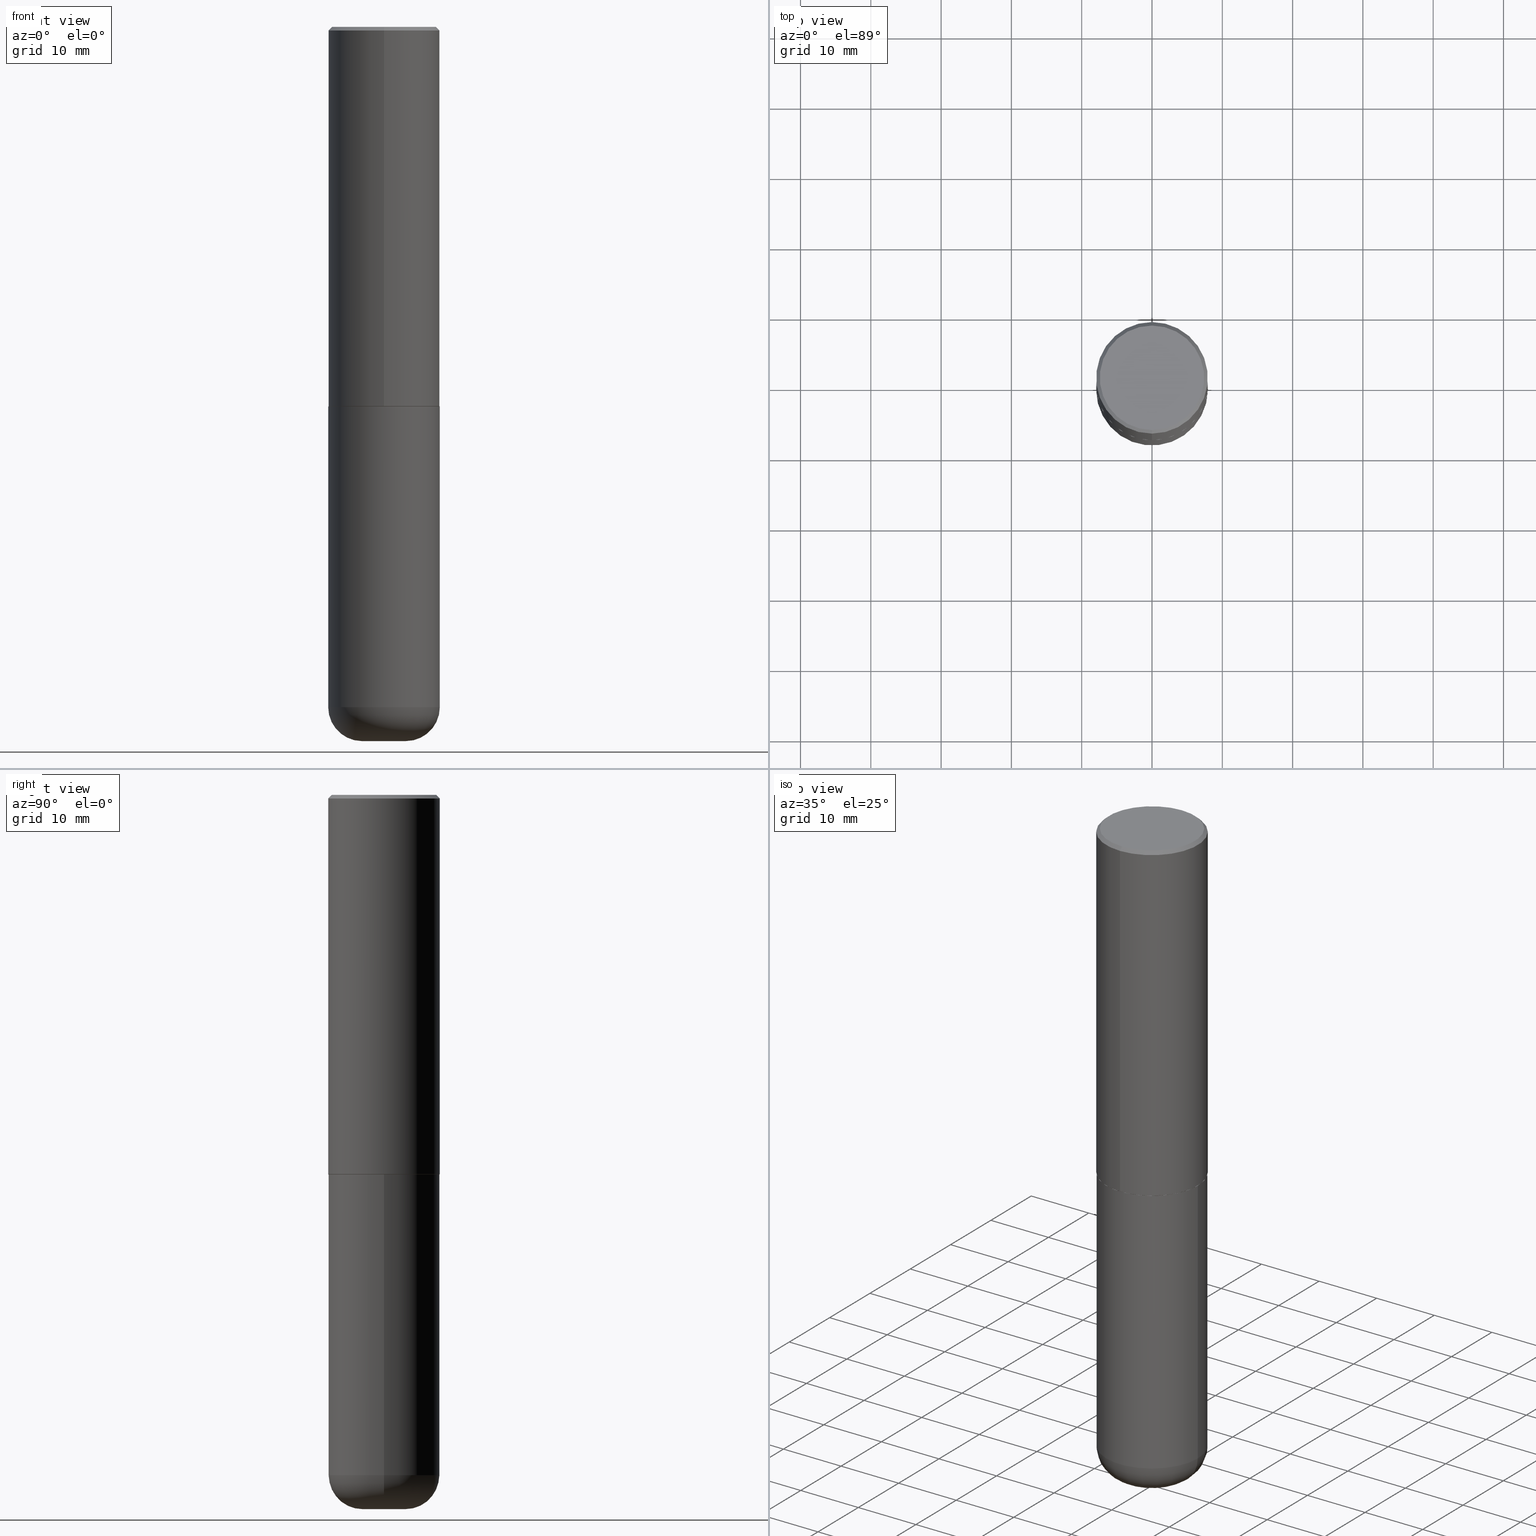
[diagram: canonical four-view strip — front | top / right | iso, engineering-drawing reading convention]
A machine part, canonical four-view strip (front | top / right | iso — engineering-drawing reading convention). The complete STEP part file that produces these views, byte-faithful:
ISO-10303-21;
HEADER;
FILE_DESCRIPTION (( 'STEP AP203' ),
    '1' );
FILE_NAME ('37620.STEP',
    '2024-03-02T06:11:22',
    ( '' ),
    ( '' ),
    'SwSTEP 2.0',
    'SolidWorks 2023',
    '' );
FILE_SCHEMA (( 'CONFIG_CONTROL_DESIGN' ));
ENDSEC;

DATA;
#1 = CALENDAR_DATE ( 2024, 2, 3 ) ;
#2 = EDGE_LOOP ( 'NONE', ( #322, #139, #11, #153 ) ) ;
#3 = VECTOR ( 'NONE', #203, 39.37007874015748143 ) ;
#4 = CC_DESIGN_APPROVAL ( #191, ( #326 ) ) ;
#5 = CARTESIAN_POINT ( 'NONE',  ( -2.075300644325887493E-15, -0.2924999999999999822, 1.030311686326234990E-15 ) ) ;
#6 = ORIENTED_EDGE ( 'NONE', *, *, #176, .T. ) ;
#7 = EDGE_CURVE ( 'NONE', #67, #396, #145, .T. ) ;
#8 = APPROVAL_DATE_TIME ( #204, #191 ) ;
#9 = CARTESIAN_POINT ( 'NONE',  ( 2.182175836776958741E-15, 0.3124999999999999445, -0.02000000000000116268 ) ) ;
#10 = ORIENTED_EDGE ( 'NONE', *, *, #369, .T. ) ;
#11 = ORIENTED_EDGE ( 'NONE', *, *, #13, .F. ) ;
#12 = DIRECTION ( 'NONE',  ( -2.445468806185136597E-29, 3.491481338843145583E-15, 1.000000000000000000 ) ) ;
#13 = EDGE_CURVE ( 'NONE', #172, #244, #52, .T. ) ;
#14 = APPROVAL_ROLE ( '' ) ;
#15 = AXIS2_PLACEMENT_3D ( 'NONE', #187, #86, #25 ) ;
#16 = CIRCLE ( 'NONE', #81, 0.3125000000000000000 ) ;
#17 = EDGE_CURVE ( 'NONE', #244, #172, #315, .T. ) ;
#18 = DIRECTION ( 'NONE',  ( -2.444852431726452894E-29, 3.492364022149836358E-15, 1.000000000000000000 ) ) ;
#19 = EDGE_LOOP ( 'NONE', ( #353, #361, #271, #170 ) ) ;
#20 = DIRECTION ( 'NONE',  ( -2.444852431726452894E-29, 3.492364022149836358E-15, 1.000000000000000000 ) ) ;
#21 = CARTESIAN_POINT ( 'NONE',  ( -0.1225000000000000255, -1.243212904968626105E-14, -3.810000000000000053 ) ) ;
#22 = CARTESIAN_POINT ( 'NONE',  ( 0.1225000000000000394, -1.482133828338914748E-14, -3.999999999999999556 ) ) ;
#23 = CLOSED_SHELL ( 'NONE', ( #298, #161, #210, #283, #354, #209 ) ) ;
#24 = FACE_OUTER_BOUND ( 'NONE', #111, .T. ) ;
#25 = DIRECTION ( 'NONE',  ( 1.000000000000000000, -6.982962677686266711E-15, 4.876176775795936353E-29 ) ) ;
#26 = DIRECTION ( 'NONE',  ( 1.000000000000000000, -6.982962677686263555E-15, 0.000000000000000000 ) ) ;
#27 = CARTESIAN_POINT ( 'NONE',  ( -0.3125000000000000000, 2.220446049250313081E-15, -1.537167215704658232E-29 ) ) ;
#28 = EDGE_CURVE ( 'NONE', #67, #302, #288, .T. ) ;
#29 = VECTOR ( 'NONE', #173, 39.37007874015748143 ) ;
#30 = MANIFOLD_SOLID_BREP ( 'Body-Move/Copy2[1]', #23 ) ;
#31 = PRODUCT_DEFINITION_SHAPE ( 'NONE', 'NONE',  #370 ) ;
#32 = ORIENTED_EDGE ( 'NONE', *, *, #189, .T. ) ;
#33 = PERSON_AND_ORGANIZATION ( #133, #255 ) ;
#34 = PERSON_AND_ORGANIZATION ( #133, #255 ) ;
#35 =( LENGTH_UNIT ( ) NAMED_UNIT ( * ) SI_UNIT ( $, .METRE. ) );
#36 = ORIENTED_EDGE ( 'NONE', *, *, #65, .F. ) ;
#37 = CC_DESIGN_DATE_AND_TIME_ASSIGNMENT ( #389, #359, ( #326 ) ) ;
#38 = ADVANCED_FACE ( 'NONE', ( #336 ), #45, .T. ) ;
#39 = MANIFOLD_SOLID_BREP ( 'Body-Move/Copy2[2]', #68 ) ;
#40 = CARTESIAN_POINT ( 'NONE',  ( 0.3125000000000000000, -9.601573681818640393E-15, -2.124999999999999556 ) ) ;
#41 = CARTESIAN_POINT ( 'NONE',  ( 5.192866564986985411E-29, -7.417781183046251262E-15, -2.123999999999999666 ) ) ;
#42 = CARTESIAN_POINT ( 'NONE',  ( -0.1225000000000000394, -1.208880417790426594E-14, -3.999999999999999556 ) ) ;
#43 = VERTEX_POINT ( 'NONE', #110 ) ;
#44 = PLANE ( 'NONE',  #113 ) ;
#45 = CYLINDRICAL_SURFACE ( 'NONE', #214, 0.3125000000000001665 ) ;
#46 = DIRECTION ( 'NONE',  ( -2.444852431726452894E-29, 3.492364022149836358E-15, 1.000000000000000000 ) ) ;
#47 = DIRECTION ( 'NONE',  ( 1.000000000000000000, -6.982962677686265133E-15, 0.000000000000000000 ) ) ;
#48 = ORIENTED_EDGE ( 'NONE', *, *, #356, .F. ) ;
#49 = DIRECTION ( 'NONE',  ( 2.444852431726452333E-29, -3.492364022149836358E-15, -1.000000000000000000 ) ) ;
#50 = DIRECTION ( 'NONE',  ( -2.444852431726452894E-29, 3.492364022149836358E-15, 1.000000000000000000 ) ) ;
#51 = EDGE_CURVE ( 'NONE', #74, #396, #231, .T. ) ;
#52 = CIRCLE ( 'NONE', #78, 0.3125000000000000000 ) ;
#53 = DIRECTION ( 'NONE',  ( -6.982962677686265922E-15, -1.000000000000000000, 3.507991003100177457E-15 ) ) ;
#54 = DIRECTION ( 'NONE',  ( 1.000000000000000000, -6.982962677686263555E-15, 0.000000000000000000 ) ) ;
#55 = CC_DESIGN_PERSON_AND_ORGANIZATION_ASSIGNMENT ( #57, #351, ( #370 ) ) ;
#56 = LINE ( 'NONE', #378, #415 ) ;
#57 = PERSON_AND_ORGANIZATION ( #133, #255 ) ;
#58 =( NAMED_UNIT ( * ) PLANE_ANGLE_UNIT ( ) SI_UNIT ( $, .RADIAN. ) );
#59 = EDGE_LOOP ( 'NONE', ( #309, #342 ) ) ;
#60 = CALENDAR_DATE ( 2024, 2, 3 ) ;
#61 = PERSON_AND_ORGANIZATION_ROLE ( 'design_owner' ) ;
#62 = AXIS2_PLACEMENT_3D ( 'NONE', #109, #76, #270 ) ;
#63 = SECURITY_CLASSIFICATION_LEVEL ( 'unclassified' ) ;
#64 = EDGE_CURVE ( 'NONE', #192, #304, #165, .T. ) ;
#65 = EDGE_CURVE ( 'NONE', #124, #396, #237, .T. ) ;
#66 = CARTESIAN_POINT ( 'NONE',  ( 5.195311417418712329E-29, -7.421273547068401324E-15, -2.124999999999999556 ) ) ;
#67 = VERTEX_POINT ( 'NONE', #332 ) ;
#68 = CLOSED_SHELL ( 'NONE', ( #125, #38, #299, #398, #234, #223, #313, #89 ) ) ;
#69 = LOCAL_TIME ( 1, 11, 22.00000000000000000, #123 ) ;
#70 = APPROVAL_STATUS ( 'not_yet_approved' ) ;
#71 = CARTESIAN_POINT ( 'NONE',  ( 9.317236151565370389E-29, -1.330254390099238573E-14, -3.810000000000000053 ) ) ;
#72 = PLANE ( 'NONE',  #202 ) ;
#73 = ADVANCED_BREP_SHAPE_REPRESENTATION ( '37620', ( #30, #39, #183 ), #358 ) ;
#74 = VERTEX_POINT ( 'NONE', #9 ) ;
#75 = ORIENTED_EDGE ( 'NONE', *, *, #64, .F. ) ;
#76 = DIRECTION ( 'NONE',  ( -2.445468806185136597E-29, 3.491481338843145583E-15, 1.000000000000000000 ) ) ;
#77 = ORIENTED_EDGE ( 'NONE', *, *, #352, .F. ) ;
#78 = AXIS2_PLACEMENT_3D ( 'NONE', #150, #12, #333 ) ;
#79 = ORIENTED_EDGE ( 'NONE', *, *, #51, .F. ) ;
#80 = AXIS2_PLACEMENT_3D ( 'NONE', #217, #417, #329 ) ;
#81 = AXIS2_PLACEMENT_3D ( 'NONE', #404, #311, #157 ) ;
#82 = DIRECTION ( 'NONE',  ( -1.000000000000000000, 6.982962677686265922E-15, -4.876176775795935793E-29 ) ) ;
#83 = DIRECTION ( 'NONE',  ( 6.982962677686265133E-15, 1.000000000000000000, -3.496765431890256920E-15 ) ) ;
#84 = DIRECTION ( 'NONE',  ( 4.937700262164541731E-15, 0.7071067811865442421, -0.7071067811865507924 ) ) ;
#85 = AXIS2_PLACEMENT_3D ( 'NONE', #140, #49, #337 ) ;
#86 = DIRECTION ( 'NONE',  ( -2.445468806185136597E-29, 3.491481338843145583E-15, 1.000000000000000000 ) ) ;
#87 = PRODUCT_DEFINITION_FORMATION_WITH_SPECIFIED_SOURCE ( 'ANY', '', #101, .NOT_KNOWN. ) ;
#88 = EDGE_CURVE ( 'NONE', #43, #304, #294, .T. ) ;
#89 = ADVANCED_FACE ( 'NONE', ( #301 ), #212, .F. ) ;
#90 = DIRECTION ( 'NONE',  ( -6.982962677686265922E-15, -1.000000000000000000, 3.507991003100177457E-15 ) ) ;
#91 = DIRECTION ( 'NONE',  ( 1.000000000000000000, -6.982962677686269077E-15, 4.883557194083113462E-29 ) ) ;
#92 = PERSON_AND_ORGANIZATION_ROLE ( 'classification_officer' ) ;
#93 = AXIS2_PLACEMENT_3D ( 'NONE', #71, #334, #310 ) ;
#94 = ORIENTED_EDGE ( 'NONE', *, *, #328, .F. ) ;
#95 = DIRECTION ( 'NONE',  ( 1.000000000000000000, 0.000000000000000000, 0.000000000000000000 ) ) ;
#96 = APPROVAL_DATE_TIME ( #418, #224 ) ;
#97 = CC_DESIGN_PERSON_AND_ORGANIZATION_ASSIGNMENT ( #33, #92, ( #326 ) ) ;
#98 = EDGE_CURVE ( 'NONE', #124, #130, #402, .T. ) ;
#99 = ORIENTED_EDGE ( 'NONE', *, *, #51, .T. ) ;
#100 = CARTESIAN_POINT ( 'NONE',  ( 5.192866564986985411E-29, -7.417781183046251262E-15, -2.123999999999999666 ) ) ;
#101 = PRODUCT ( '37620', '37620', '', ( #193 ) ) ;
#102 = VERTEX_POINT ( 'NONE', #136 ) ;
#103 = LINE ( 'NONE', #373, #219 ) ;
#104 = AXIS2_PLACEMENT_3D ( 'NONE', #66, #46, #107 ) ;
#105 = AXIS2_PLACEMENT_3D ( 'NONE', #287, #256, #83 ) ;
#106 = ORIENTED_EDGE ( 'NONE', *, *, #339, .F. ) ;
#107 = DIRECTION ( 'NONE',  ( -6.982962677686265922E-15, -1.000000000000000000, 3.507991003100177457E-15 ) ) ;
#108 = ORIENTED_EDGE ( 'NONE', *, *, #412, .F. ) ;
#109 = CARTESIAN_POINT ( 'NONE',  ( 9.317236151565370389E-29, -1.330254390099238573E-14, -3.810000000000000053 ) ) ;
#110 = CARTESIAN_POINT ( 'NONE',  ( 0.3124999999999998890, -1.548471973776934408E-14, -3.810000000000000053 ) ) ;
#111 = EDGE_LOOP ( 'NONE', ( #213, #365, #248, #79 ) ) ;
#112 = EDGE_CURVE ( 'NONE', #302, #67, #307, .T. ) ;
#113 = AXIS2_PLACEMENT_3D ( 'NONE', #174, #277, #306 ) ;
#114 = EDGE_LOOP ( 'NONE', ( #36, #138, #377, #99 ) ) ;
#115 = CARTESIAN_POINT ( 'NONE',  ( -2.143905624303602824E-15, -0.3125000000000000555, -0.01999999999999897693 ) ) ;
#116 = FACE_OUTER_BOUND ( 'NONE', #241, .T. ) ;
#117 = EDGE_LOOP ( 'NONE', ( #276, #416, #284, #77 ) ) ;
#118 = DIRECTION ( 'NONE',  ( 6.982962677686265133E-15, 1.000000000000000000, -3.496765431890256920E-15 ) ) ;
#119 = AXIS2_PLACEMENT_3D ( 'NONE', #221, #122, #118 ) ;
#120 = CYLINDRICAL_SURFACE ( 'NONE', #350, 0.3125000000000000000 ) ;
#121 = DIRECTION ( 'NONE',  ( -2.444852431726452894E-29, 3.492364022149836358E-15, 1.000000000000000000 ) ) ;
#122 = DIRECTION ( 'NONE',  ( 2.444852431726452894E-29, -3.492364022149836358E-15, -1.000000000000000000 ) ) ;
#123 = COORDINATED_UNIVERSAL_TIME_OFFSET ( 5, 0, .BEHIND. ) ;
#124 = VERTEX_POINT ( 'NONE', #5 ) ;
#125 = ADVANCED_FACE ( 'NONE', ( #236 ), #282, .T. ) ;
#126 = AXIS2_PLACEMENT_3D ( 'NONE', #100, #171, #341 ) ;
#127 = AXIS2_PLACEMENT_3D ( 'NONE', #403, #376, #344 ) ;
#128 = ORIENTED_EDGE ( 'NONE', *, *, #64, .T. ) ;
#129 =( NAMED_UNIT ( * ) SI_UNIT ( $, .STERADIAN. ) SOLID_ANGLE_UNIT ( ) );
#130 = VERTEX_POINT ( 'NONE', #178 ) ;
#131 = PERSON_AND_ORGANIZATION ( #133, #255 ) ;
#132 = EDGE_CURVE ( 'NONE', #102, #169, #409, .T. ) ;
#133 = PERSON ( 'UNSPECIFIED', 'UNSPECIFIED', 'UNSPECIFIED', ('UNSPECIFIED'), ('UNSPECIFIED'), ('UNSPECIFIED') ) ;
#134 = AXIS2_PLACEMENT_3D ( 'NONE', #141, #137, #47 ) ;
#135 = CC_DESIGN_APPROVAL ( #148, ( #370 ) ) ;
#136 = CARTESIAN_POINT ( 'NONE',  ( 2.216893335571564642E-15, 0.3114999999999925606, -2.125000000000000888 ) ) ;
#137 = DIRECTION ( 'NONE',  ( -2.445468806185136597E-29, 3.491481338843145583E-15, 1.000000000000000000 ) ) ;
#138 = ORIENTED_EDGE ( 'NONE', *, *, #189, .F. ) ;
#139 = ORIENTED_EDGE ( 'NONE', *, *, #339, .T. ) ;
#140 = CARTESIAN_POINT ( 'NONE',  ( 2.042516583223232540E-15, 0.2924999999999999822, -1.017118871555123169E-15 ) ) ;
#141 = CARTESIAN_POINT ( 'NONE',  ( 5.196621213143414147E-29, -7.419397845041682046E-15, -2.124999999999999556 ) ) ;
#142 = AXIS2_PLACEMENT_3D ( 'NONE', #208, #364, #238 ) ;
#143 = CC_DESIGN_SECURITY_CLASSIFICATION ( #326, ( #87 ) ) ;
#144 = ORIENTED_EDGE ( 'NONE', *, *, #17, .F. ) ;
#145 = LINE ( 'NONE', #338, #3 ) ;
#146 = COORDINATED_UNIVERSAL_TIME_OFFSET ( 5, 0, .BEHIND. ) ;
#147 = CARTESIAN_POINT ( 'NONE',  ( -2.150299018297948745E-46, 3.071607443834507134E-32, 8.795209847407834549E-18 ) ) ;
#148 = APPROVAL ( #233, 'UNSPECIFIED' ) ;
#149 = CC_DESIGN_PERSON_AND_ORGANIZATION_ASSIGNMENT ( #131, #230, ( #87 ) ) ;
#150 = CARTESIAN_POINT ( 'NONE',  ( 5.196621213143414147E-29, -7.419397845041682046E-15, -2.124999999999999556 ) ) ;
#151 = LINE ( 'NONE', #218, #308 ) ;
#152 = AXIS2_PLACEMENT_3D ( 'NONE', #147, #279, #393 ) ;
#153 = ORIENTED_EDGE ( 'NONE', *, *, #177, .F. ) ;
#154 = VECTOR ( 'NONE', #408, 39.37007874015748143 ) ;
#155 = FACE_OUTER_BOUND ( 'NONE', #179, .T. ) ;
#156 = CARTESIAN_POINT ( 'NONE',  ( 5.195311417418712329E-29, -7.421273547068401324E-15, -2.124999999999999556 ) ) ;
#157 = DIRECTION ( 'NONE',  ( -6.982962677686265133E-15, -1.000000000000000000, 3.496765431890256920E-15 ) ) ;
#158 = DIRECTION ( 'NONE',  ( -2.445468806185136597E-29, 3.491481338843145583E-15, 1.000000000000000000 ) ) ;
#159 = CIRCLE ( 'NONE', #127, 0.1899999999999997247 ) ;
#160 = APPROVAL_ROLE ( '' ) ;
#161 = ADVANCED_FACE ( 'NONE', ( #200 ), #372, .T. ) ;
#162 = PERSON_AND_ORGANIZATION_ROLE ( 'design_supplier' ) ;
#163 = DATE_TIME_ROLE ( 'creation_date' ) ;
#164 = CONICAL_SURFACE ( 'NONE', #188, 0.3114999999999999991, 0.7853981633975507526 ) ;
#165 = CIRCLE ( 'NONE', #247, 0.1899999999999997247 ) ;
#166 = LOCAL_TIME ( 1, 11, 22.00000000000000000, #263 ) ;
#167 = ORIENTED_EDGE ( 'NONE', *, *, #112, .F. ) ;
#168 = LINE ( 'NONE', #394, #345 ) ;
#169 = VERTEX_POINT ( 'NONE', #246 ) ;
#170 = ORIENTED_EDGE ( 'NONE', *, *, #369, .F. ) ;
#171 = DIRECTION ( 'NONE',  ( -2.444852431726452894E-29, 3.492364022149836358E-15, 1.000000000000000000 ) ) ;
#172 = VERTEX_POINT ( 'NONE', #40 ) ;
#173 = DIRECTION ( 'NONE',  ( -4.851104656540957964E-15, -0.7071067811865491270, -0.7071067811865459074 ) ) ;
#174 = CARTESIAN_POINT ( 'NONE',  ( 5.196621213143414147E-29, -7.419397845041682046E-15, -2.124999999999999556 ) ) ;
#175 = CARTESIAN_POINT ( 'NONE',  ( 0.000000000000000000, 0.000000000000000000, 0.000000000000000000 ) ) ;
#176 = EDGE_CURVE ( 'NONE', #302, #74, #168, .T. ) ;
#177 = EDGE_CURVE ( 'NONE', #43, #172, #103, .T. ) ;
#178 = CARTESIAN_POINT ( 'NONE',  ( 2.112346210000095838E-15, 0.2924999999999999822, -1.012721266631419361E-15 ) ) ;
#179 = EDGE_LOOP ( 'NONE', ( #75, #324, #206, #108 ) ) ;
#180 = CARTESIAN_POINT ( 'NONE',  ( 5.195311417418712329E-29, -7.421273547068401324E-15, -2.124999999999999556 ) ) ;
#181 = ORIENTED_EDGE ( 'NONE', *, *, #412, .T. ) ;
#182 = AXIS2_PLACEMENT_3D ( 'NONE', #406, #289, #314 ) ;
#183 = AXIS2_PLACEMENT_3D ( 'NONE', #320, #261, #95 ) ;
#184 = CARTESIAN_POINT ( 'NONE',  ( -0.3125000000000000000, -8.140524823766720019E-15, -2.124999999999999556 ) ) ;
#185 = DIRECTION ( 'NONE',  ( -2.445468806185136597E-29, 3.491481338843145583E-15, 1.000000000000000000 ) ) ;
#186 = APPLICATION_CONTEXT ( 'configuration controlled 3d designs of mechanical parts and assemblies' ) ;
#187 = CARTESIAN_POINT ( 'NONE',  ( 0.000000000000000000, 0.000000000000000000, 0.000000000000000000 ) ) ;
#188 = AXIS2_PLACEMENT_3D ( 'NONE', #243, #20, #53 ) ;
#189 = EDGE_CURVE ( 'NONE', #130, #124, #267, .T. ) ;
#190 = CIRCLE ( 'NONE', #331, 0.3114999999999999991 ) ;
#191 = APPROVAL ( #70, 'UNSPECIFIED' ) ;
#192 = VERTEX_POINT ( 'NONE', #42 ) ;
#193 = MECHANICAL_CONTEXT ( 'NONE', #405, 'mechanical' ) ;
#194 = ORIENTED_EDGE ( 'NONE', *, *, #383, .F. ) ;
#195 = APPROVAL_ROLE ( '' ) ;
#196 = CIRCLE ( 'NONE', #357, 0.1225000000000000394 ) ;
#197 = CIRCLE ( 'NONE', #80, 0.3125000000000000000 ) ;
#198 = EDGE_LOOP ( 'NONE', ( #32, #216 ) ) ;
#199 = PERSON_AND_ORGANIZATION ( #133, #255 ) ;
#200 = FACE_OUTER_BOUND ( 'NONE', #388, .T. ) ;
#201 = EDGE_CURVE ( 'NONE', #102, #302, #205, .T. ) ;
#202 = AXIS2_PLACEMENT_3D ( 'NONE', #215, #368, #82 ) ;
#203 = DIRECTION ( 'NONE',  ( -2.444852431726452614E-29, 3.492364022149836358E-15, 1.000000000000000000 ) ) ;
#204 = DATE_AND_TIME ( #272, #232 ) ;
#205 = LINE ( 'NONE', #366, #379 ) ;
#206 = ORIENTED_EDGE ( 'NONE', *, *, #383, .T. ) ;
#207 = SHAPE_DEFINITION_REPRESENTATION ( #31, #73 ) ;
#208 = CARTESIAN_POINT ( 'NONE',  ( -2.150299018297948745E-46, 3.071607443834507134E-32, 8.795209847407834549E-18 ) ) ;
#209 = ADVANCED_FACE ( 'NONE', ( #242 ), #72, .T. ) ;
#210 = ADVANCED_FACE ( 'NONE', ( #335 ), #44, .F. ) ;
#211 = ORIENTED_EDGE ( 'NONE', *, *, #235, .F. ) ;
#212 = PLANE ( 'NONE',  #85 ) ;
#213 = ORIENTED_EDGE ( 'NONE', *, *, #176, .F. ) ;
#214 = AXIS2_PLACEMENT_3D ( 'NONE', #175, #278, #399 ) ;
#215 = CARTESIAN_POINT ( 'NONE',  ( 2.223992752245134548E-28, 3.874714603251181520E-15, -4.000000000000000000 ) ) ;
#216 = ORIENTED_EDGE ( 'NONE', *, *, #98, .T. ) ;
#217 = CARTESIAN_POINT ( 'NONE',  ( 9.317236151565370389E-29, -1.330254390099238573E-14, -3.810000000000000053 ) ) ;
#218 = CARTESIAN_POINT ( 'NONE',  ( -2.175192874099219874E-15, -0.3115000000000074376, -2.124999999999998668 ) ) ;
#219 = VECTOR ( 'NONE', #400, 39.37007874015748143 ) ;
#220 = TOROIDAL_SURFACE ( 'NONE', #240, 0.1225000000000000255, 0.1899999999999996692 ) ;
#221 = CARTESIAN_POINT ( 'NONE',  ( 4.889704863452922148E-31, -6.984728044299695791E-17, -0.02000000000000006981 ) ) ;
#222 = CYLINDRICAL_SURFACE ( 'NONE', #182, 0.3125000000000001665 ) ;
#223 = ADVANCED_FACE ( 'NONE', ( #397 ), #164, .T. ) ;
#224 = APPROVAL ( #413, 'UNSPECIFIED' ) ;
#225 = DIRECTION ( 'NONE',  ( -2.445468806185136597E-29, 3.491481338843145583E-15, 1.000000000000000000 ) ) ;
#226 =( CONVERSION_BASED_UNIT ( 'INCH', #297 ) LENGTH_UNIT ( ) NAMED_UNIT ( #229 ) );
#227 = EDGE_LOOP ( 'NONE', ( #330, #355, #10, #167 ) ) ;
#228 = DATE_AND_TIME ( #60, #166 ) ;
#229 = DIMENSIONAL_EXPONENTS ( 1.000000000000000000, 0.000000000000000000, 0.000000000000000000, 0.000000000000000000, 0.000000000000000000, 0.000000000000000000, 0.000000000000000000 ) ;
#230 = PERSON_AND_ORGANIZATION_ROLE ( 'creator' ) ;
#231 = CIRCLE ( 'NONE', #325, 0.3125000000000000000 ) ;
#232 = LOCAL_TIME ( 1, 11, 22.00000000000000000, #146 ) ;
#233 = APPROVAL_STATUS ( 'not_yet_approved' ) ;
#234 = ADVANCED_FACE ( 'NONE', ( #24 ), #222, .T. ) ;
#235 = EDGE_CURVE ( 'NONE', #252, #192, #362, .T. ) ;
#236 = FACE_OUTER_BOUND ( 'NONE', #19, .T. ) ;
#237 = LINE ( 'NONE', #250, #29 ) ;
#238 = DIRECTION ( 'NONE',  ( -6.982962677686265133E-15, -1.000000000000000000, 3.492364022149836753E-15 ) ) ;
#239 = AXIS2_PLACEMENT_3D ( 'NONE', #41, #275, #367 ) ;
#240 = AXIS2_PLACEMENT_3D ( 'NONE', #347, #158, #91 ) ;
#241 = EDGE_LOOP ( 'NONE', ( #94, #371 ) ) ;
#242 = FACE_OUTER_BOUND ( 'NONE', #245, .T. ) ;
#243 = CARTESIAN_POINT ( 'NONE',  ( 5.195311417418712329E-29, -7.421273547068401324E-15, -2.124999999999999556 ) ) ;
#244 = VERTEX_POINT ( 'NONE', #184 ) ;
#245 = EDGE_LOOP ( 'NONE', ( #211, #386 ) ) ;
#246 = CARTESIAN_POINT ( 'NONE',  ( -2.175192874099219874E-15, -0.3115000000000074376, -2.124999999999998668 ) ) ;
#247 = AXIS2_PLACEMENT_3D ( 'NONE', #21, #381, #385 ) ;
#248 = ORIENTED_EDGE ( 'NONE', *, *, #7, .T. ) ;
#249 = FACE_OUTER_BOUND ( 'NONE', #2, .T. ) ;
#250 = CARTESIAN_POINT ( 'NONE',  ( -2.143905624303602824E-15, -0.3125000000000000555, -0.01999999999999897693 ) ) ;
#251 = FACE_OUTER_BOUND ( 'NONE', #114, .T. ) ;
#252 = VERTEX_POINT ( 'NONE', #22 ) ;
#253 = CARTESIAN_POINT ( 'NONE',  ( 9.781875224740545266E-29, -1.396592535537258075E-14, -3.999999999999999556 ) ) ;
#254 = CONICAL_SURFACE ( 'NONE', #119, 0.3125000000000000000, 0.7853981633974471688 ) ;
#255 = ORGANIZATION ( 'UNSPECIFIED', 'UNSPECIFIED', '' ) ;
#256 = DIRECTION ( 'NONE',  ( 2.444852431726452894E-29, -3.492364022149836358E-15, -1.000000000000000000 ) ) ;
#257 = CC_DESIGN_PERSON_AND_ORGANIZATION_ASSIGNMENT ( #321, #61, ( #101 ) ) ;
#258 = DIRECTION ( 'NONE',  ( -2.444852431726452333E-29, 3.492364022149836358E-15, 1.000000000000000000 ) ) ;
#259 = CALENDAR_DATE ( 2024, 2, 3 ) ;
#260 = ORIENTED_EDGE ( 'NONE', *, *, #235, .T. ) ;
#261 = DIRECTION ( 'NONE',  ( 0.000000000000000000, 0.000000000000000000, 1.000000000000000000 ) ) ;
#262 = UNCERTAINTY_MEASURE_WITH_UNIT (LENGTH_MEASURE( 1.000000000000000082E-05 ), #226, 'distance_accuracy_value', 'NONE');
#263 = COORDINATED_UNIVERSAL_TIME_OFFSET ( 5, 0, .BEHIND. ) ;
#264 = EDGE_LOOP ( 'NONE', ( #392, #6, #48, #280 ) ) ;
#265 = APPROVAL_DATE_TIME ( #323, #148 ) ;
#266 = AXIS2_PLACEMENT_3D ( 'NONE', #343, #225, #54 ) ;
#267 = CIRCLE ( 'NONE', #142, 0.2924999999999999822 ) ;
#268 = APPROVAL_PERSON_ORGANIZATION ( #199, #191, #14 ) ;
#269 = CC_DESIGN_PERSON_AND_ORGANIZATION_ASSIGNMENT ( #384, #162, ( #87 ) ) ;
#270 = DIRECTION ( 'NONE',  ( 1.000000000000000000, -6.982962677686269077E-15, 0.000000000000000000 ) ) ;
#271 = ORIENTED_EDGE ( 'NONE', *, *, #28, .F. ) ;
#272 = CALENDAR_DATE ( 2024, 2, 3 ) ;
#273 = CARTESIAN_POINT ( 'NONE',  ( 5.195311417418712329E-29, -7.421273547068401324E-15, -2.124999999999999556 ) ) ;
#274 = LOCAL_TIME ( 1, 11, 22.00000000000000000, #290 ) ;
#275 = DIRECTION ( 'NONE',  ( -2.444852431726452894E-29, 3.492364022149836358E-15, 1.000000000000000000 ) ) ;
#276 = ORIENTED_EDGE ( 'NONE', *, *, #98, .F. ) ;
#277 = DIRECTION ( 'NONE',  ( 2.438088387897960049E-29, -3.491481338843145188E-15, -1.000000000000000000 ) ) ;
#278 = DIRECTION ( 'NONE',  ( -2.444852431726452894E-29, 3.492364022149836358E-15, 1.000000000000000000 ) ) ;
#279 = DIRECTION ( 'NONE',  ( -2.444852431726452894E-29, 3.492364022149836358E-15, 1.000000000000000000 ) ) ;
#280 = ORIENTED_EDGE ( 'NONE', *, *, #7, .F. ) ;
#281 = DIRECTION ( 'NONE',  ( -4.937700262165053702E-15, -0.7071067811866175168, 0.7071067811864775177 ) ) ;
#282 = CONICAL_SURFACE ( 'NONE', #300, 0.3114999999999999991, 0.7853981633975507526 ) ;
#283 = ADVANCED_FACE ( 'NONE', ( #316 ), #411, .T. ) ;
#284 = ORIENTED_EDGE ( 'NONE', *, *, #356, .T. ) ;
#285 = CARTESIAN_POINT ( 'NONE',  ( 0.000000000000000000, 0.000000000000000000, 0.000000000000000000 ) ) ;
#286 = LINE ( 'NONE', #27, #154 ) ;
#287 = CARTESIAN_POINT ( 'NONE',  ( 4.889704863452922148E-31, -6.984728044299695791E-17, -0.02000000000000006981 ) ) ;
#288 = CIRCLE ( 'NONE', #239, 0.3125000000000002776 ) ;
#289 = DIRECTION ( 'NONE',  ( -2.444852431726452894E-29, 3.492364022149836358E-15, 1.000000000000000000 ) ) ;
#290 = COORDINATED_UNIVERSAL_TIME_OFFSET ( 5, 0, .BEHIND. ) ;
#291 = DESIGN_CONTEXT ( 'detailed design', #186, 'design' ) ;
#292 = CALENDAR_DATE ( 2024, 2, 3 ) ;
#293 = DIRECTION ( 'NONE',  ( -6.982962677686265133E-15, -1.000000000000000000, 3.496765431890256920E-15 ) ) ;
#294 = CIRCLE ( 'NONE', #62, 0.3125000000000000000 ) ;
#295 = COORDINATED_UNIVERSAL_TIME_OFFSET ( 5, 0, .BEHIND. ) ;
#296 = PERSON_AND_ORGANIZATION ( #133, #255 ) ;
#297 = LENGTH_MEASURE_WITH_UNIT ( LENGTH_MEASURE( 0.02539999999999999897 ), #35 );
#298 = ADVANCED_FACE ( 'NONE', ( #249 ), #120, .T. ) ;
#299 = ADVANCED_FACE ( 'NONE', ( #380 ), #254, .T. ) ;
#300 = AXIS2_PLACEMENT_3D ( 'NONE', #273, #18, #360 ) ;
#301 = FACE_OUTER_BOUND ( 'NONE', #198, .T. ) ;
#302 = VERTEX_POINT ( 'NONE', #349 ) ;
#303 = DIRECTION ( 'NONE',  ( -2.444852431726452614E-29, 3.492364022149836358E-15, 1.000000000000000000 ) ) ;
#304 = VERTEX_POINT ( 'NONE', #375 ) ;
#305 = DIRECTION ( 'NONE',  ( 5.024295867788576727E-15, 0.7071067811866224018, 0.7071067811864726327 ) ) ;
#306 = DIRECTION ( 'NONE',  ( -1.000000000000000000, 6.982962677686265922E-15, -4.876176775795935793E-29 ) ) ;
#307 = CIRCLE ( 'NONE', #126, 0.3125000000000002776 ) ;
#308 = VECTOR ( 'NONE', #281, 39.37007874015748143 ) ;
#309 = ORIENTED_EDGE ( 'NONE', *, *, #13, .T. ) ;
#310 = DIRECTION ( 'NONE',  ( 1.000000000000000000, -6.982962677686269077E-15, 4.883557194083113462E-29 ) ) ;
#311 = DIRECTION ( 'NONE',  ( -2.444852431726452894E-29, 3.492364022149836358E-15, 1.000000000000000000 ) ) ;
#312 = EDGE_CURVE ( 'NONE', #192, #252, #196, .T. ) ;
#313 = ADVANCED_FACE ( 'NONE', ( #116 ), #317, .F. ) ;
#314 = DIRECTION ( 'NONE',  ( -6.982962677686265133E-15, -1.000000000000000000, 3.492364022149836358E-15 ) ) ;
#315 = CIRCLE ( 'NONE', #134, 0.3125000000000000000 ) ;
#316 = FACE_OUTER_BOUND ( 'NONE', #414, .T. ) ;
#317 = PLANE ( 'NONE',  #363 ) ;
#318 = DIRECTION ( 'NONE',  ( 1.000000000000000000, -6.982962677686266711E-15, 4.876176775795936353E-29 ) ) ;
#319 = CONICAL_SURFACE ( 'NONE', #105, 0.3125000000000000000, 0.7853981633974471688 ) ;
#320 = CARTESIAN_POINT ( 'NONE',  ( 0.000000000000000000, 0.000000000000000000, 0.000000000000000000 ) ) ;
#321 = PERSON_AND_ORGANIZATION ( #133, #255 ) ;
#322 = ORIENTED_EDGE ( 'NONE', *, *, #88, .T. ) ;
#323 = DATE_AND_TIME ( #1, #274 ) ;
#324 = ORIENTED_EDGE ( 'NONE', *, *, #312, .T. ) ;
#325 = AXIS2_PLACEMENT_3D ( 'NONE', #407, #121, #293 ) ;
#326 = SECURITY_CLASSIFICATION ( '', '', #63 ) ;
#327 = PRODUCT_RELATED_PRODUCT_CATEGORY ( 'detail', '', ( #101 ) ) ;
#328 = EDGE_CURVE ( 'NONE', #169, #102, #190, .T. ) ;
#329 = DIRECTION ( 'NONE',  ( 1.000000000000000000, -6.982962677686269077E-15, 0.000000000000000000 ) ) ;
#330 = ORIENTED_EDGE ( 'NONE', *, *, #201, .F. ) ;
#331 = AXIS2_PLACEMENT_3D ( 'NONE', #156, #50, #90 ) ;
#332 = CARTESIAN_POINT ( 'NONE',  ( -2.182175836776908254E-15, -0.3125000000000077161, -2.123999999999998334 ) ) ;
#333 = DIRECTION ( 'NONE',  ( 1.000000000000000000, -6.982962677686265133E-15, 0.000000000000000000 ) ) ;
#334 = DIRECTION ( 'NONE',  ( -2.445468806185136597E-29, 3.491481338843145583E-15, 1.000000000000000000 ) ) ;
#335 = FACE_OUTER_BOUND ( 'NONE', #59, .T. ) ;
#336 = FACE_OUTER_BOUND ( 'NONE', #264, .T. ) ;
#337 = DIRECTION ( 'NONE',  ( 6.982962677686265922E-15, 1.000000000000000000, -3.492364022149836358E-15 ) ) ;
#338 = CARTESIAN_POINT ( 'NONE',  ( -2.182175836776959136E-15, -0.3125000000000001665, 1.091363756921824478E-15 ) ) ;
#339 = EDGE_CURVE ( 'NONE', #304, #244, #286, .T. ) ;
#340 = CC_DESIGN_DATE_AND_TIME_ASSIGNMENT ( #228, #163, ( #370 ) ) ;
#341 = DIRECTION ( 'NONE',  ( -6.982962677686265922E-15, -1.000000000000000000, 3.496765431890253764E-15 ) ) ;
#342 = ORIENTED_EDGE ( 'NONE', *, *, #17, .T. ) ;
#343 = CARTESIAN_POINT ( 'NONE',  ( 9.781875224740545266E-29, -1.396592535537258075E-14, -3.999999999999999556 ) ) ;
#344 = DIRECTION ( 'NONE',  ( 1.000000000000000000, -6.982962677686261189E-15, 0.000000000000000000 ) ) ;
#345 = VECTOR ( 'NONE', #303, 39.37007874015748143 ) ;
#346 = APPROVAL_PERSON_ORGANIZATION ( #34, #224, #195 ) ;
#347 = CARTESIAN_POINT ( 'NONE',  ( 9.317236151565370389E-29, -1.330254390099238573E-14, -3.810000000000000053 ) ) ;
#348 = DIRECTION ( 'NONE',  ( -2.445468806185136597E-29, 3.491481338843145583E-15, 1.000000000000000000 ) ) ;
#349 = CARTESIAN_POINT ( 'NONE',  ( 2.220446049250340297E-15, 0.3124999999999928391, -2.124000000000000554 ) ) ;
#350 = AXIS2_PLACEMENT_3D ( 'NONE', #285, #348, #318 ) ;
#351 = PERSON_AND_ORGANIZATION_ROLE ( 'creator' ) ;
#352 = EDGE_CURVE ( 'NONE', #130, #74, #56, .T. ) ;
#353 = ORIENTED_EDGE ( 'NONE', *, *, #328, .T. ) ;
#354 = ADVANCED_FACE ( 'NONE', ( #155 ), #220, .T. ) ;
#355 = ORIENTED_EDGE ( 'NONE', *, *, #132, .T. ) ;
#356 = EDGE_CURVE ( 'NONE', #396, #74, #16, .T. ) ;
#357 = AXIS2_PLACEMENT_3D ( 'NONE', #253, #185, #26 ) ;
#358 =( GEOMETRIC_REPRESENTATION_CONTEXT ( 3 ) GLOBAL_UNCERTAINTY_ASSIGNED_CONTEXT ( ( #262 ) ) GLOBAL_UNIT_ASSIGNED_CONTEXT ( ( #226, #58, #129 ) ) REPRESENTATION_CONTEXT ( 'NONE', 'WORKASPACE' ) );
#359 = DATE_TIME_ROLE ( 'classification_date' ) ;
#360 = DIRECTION ( 'NONE',  ( -6.982962677686265922E-15, -1.000000000000000000, 3.507991003100177457E-15 ) ) ;
#361 = ORIENTED_EDGE ( 'NONE', *, *, #201, .T. ) ;
#362 = CIRCLE ( 'NONE', #266, 0.1225000000000000394 ) ;
#363 = AXIS2_PLACEMENT_3D ( 'NONE', #180, #258, #382 ) ;
#364 = DIRECTION ( 'NONE',  ( -2.444852431726452894E-29, 3.492364022149836358E-15, 1.000000000000000000 ) ) ;
#365 = ORIENTED_EDGE ( 'NONE', *, *, #112, .T. ) ;
#366 = CARTESIAN_POINT ( 'NONE',  ( 2.213340621892763743E-15, 0.3114999999999925606, -2.125000000000000888 ) ) ;
#367 = DIRECTION ( 'NONE',  ( -6.982962677686265922E-15, -1.000000000000000000, 3.496765431890253764E-15 ) ) ;
#368 = DIRECTION ( 'NONE',  ( 2.438088387897960049E-29, -3.491481338843145188E-15, -1.000000000000000000 ) ) ;
#369 = EDGE_CURVE ( 'NONE', #169, #67, #151, .T. ) ;
#370 = PRODUCT_DEFINITION ( 'UNKNOWN', '', #87, #291 ) ;
#371 = ORIENTED_EDGE ( 'NONE', *, *, #132, .F. ) ;
#372 = TOROIDAL_SURFACE ( 'NONE', #93, 0.1225000000000000255, 0.1899999999999996692 ) ;
#373 = CARTESIAN_POINT ( 'NONE',  ( 0.3125000000000000000, -2.182175836776958347E-15, 1.523805242436230075E-29 ) ) ;
#374 = LOCAL_TIME ( 1, 11, 22.00000000000000000, #295 ) ;
#375 = CARTESIAN_POINT ( 'NONE',  ( -0.3124999999999998890, -1.108209785174207265E-14, -3.810000000000000053 ) ) ;
#376 = DIRECTION ( 'NONE',  ( -6.982962677686266711E-15, -1.000000000000000000, 3.491481338843145583E-15 ) ) ;
#377 = ORIENTED_EDGE ( 'NONE', *, *, #352, .T. ) ;
#378 = CARTESIAN_POINT ( 'NONE',  ( 2.182175836776958741E-15, 0.3124999999999999445, -0.02000000000000116268 ) ) ;
#379 = VECTOR ( 'NONE', #305, 39.37007874015748143 ) ;
#380 = FACE_OUTER_BOUND ( 'NONE', #117, .T. ) ;
#381 = DIRECTION ( 'NONE',  ( 7.105427357601001859E-15, 1.000000000000000000, -3.491481338843145583E-15 ) ) ;
#382 = DIRECTION ( 'NONE',  ( -6.982962677686265922E-15, -1.000000000000000000, 3.492364022149836358E-15 ) ) ;
#383 = EDGE_CURVE ( 'NONE', #252, #43, #159, .T. ) ;
#384 = PERSON_AND_ORGANIZATION ( #133, #255 ) ;
#385 = DIRECTION ( 'NONE',  ( -1.000000000000000000, 7.105427357600997914E-15, 0.000000000000000000 ) ) ;
#386 = ORIENTED_EDGE ( 'NONE', *, *, #312, .F. ) ;
#387 = APPLICATION_PROTOCOL_DEFINITION ( 'international standard', 'config_control_design', 1994, #186 ) ;
#388 = EDGE_LOOP ( 'NONE', ( #260, #128, #401, #194 ) ) ;
#389 = DATE_AND_TIME ( #292, #374 ) ;
#390 = APPLICATION_PROTOCOL_DEFINITION ( 'international standard', 'config_control_design', 1994, #405 ) ;
#391 = APPROVAL_PERSON_ORGANIZATION ( #296, #148, #160 ) ;
#392 = ORIENTED_EDGE ( 'NONE', *, *, #28, .T. ) ;
#393 = DIRECTION ( 'NONE',  ( -6.982962677686265133E-15, -1.000000000000000000, 3.492364022149836753E-15 ) ) ;
#394 = CARTESIAN_POINT ( 'NONE',  ( 2.220446049250313475E-15, 0.3125000000000001665, -1.091363756921824478E-15 ) ) ;
#395 = ORIENTED_EDGE ( 'NONE', *, *, #177, .T. ) ;
#396 = VERTEX_POINT ( 'NONE', #115 ) ;
#397 = FACE_OUTER_BOUND ( 'NONE', #227, .T. ) ;
#398 = ADVANCED_FACE ( 'NONE', ( #251 ), #319, .T. ) ;
#399 = DIRECTION ( 'NONE',  ( -6.982962677686265133E-15, -1.000000000000000000, 3.492364022149836358E-15 ) ) ;
#400 = DIRECTION ( 'NONE',  ( -2.445468806185136877E-29, 3.491481338843145188E-15, 1.000000000000000000 ) ) ;
#401 = ORIENTED_EDGE ( 'NONE', *, *, #88, .F. ) ;
#402 = CIRCLE ( 'NONE', #152, 0.2924999999999999822 ) ;
#403 = CARTESIAN_POINT ( 'NONE',  ( 0.1225000000000000255, -1.415795682900895246E-14, -3.810000000000000053 ) ) ;
#404 = CARTESIAN_POINT ( 'NONE',  ( 4.889704863452922148E-31, -6.984728044299695791E-17, -0.02000000000000006981 ) ) ;
#405 = APPLICATION_CONTEXT ( 'configuration controlled 3d designs of mechanical parts and assemblies' ) ;
#406 = CARTESIAN_POINT ( 'NONE',  ( 0.000000000000000000, 0.000000000000000000, 0.000000000000000000 ) ) ;
#407 = CARTESIAN_POINT ( 'NONE',  ( 4.889704863452922148E-31, -6.984728044299695791E-17, -0.02000000000000006981 ) ) ;
#408 = DIRECTION ( 'NONE',  ( -2.445468806185136877E-29, 3.491481338843145188E-15, 1.000000000000000000 ) ) ;
#409 = CIRCLE ( 'NONE', #104, 0.3114999999999999991 ) ;
#410 = CC_DESIGN_APPROVAL ( #224, ( #87 ) ) ;
#411 = CYLINDRICAL_SURFACE ( 'NONE', #15, 0.3125000000000000000 ) ;
#412 = EDGE_CURVE ( 'NONE', #304, #43, #197, .T. ) ;
#413 = APPROVAL_STATUS ( 'not_yet_approved' ) ;
#414 = EDGE_LOOP ( 'NONE', ( #106, #181, #395, #144 ) ) ;
#415 = VECTOR ( 'NONE', #84, 39.37007874015748143 ) ;
#416 = ORIENTED_EDGE ( 'NONE', *, *, #65, .T. ) ;
#417 = DIRECTION ( 'NONE',  ( -2.445468806185136597E-29, 3.491481338843145583E-15, 1.000000000000000000 ) ) ;
#418 = DATE_AND_TIME ( #259, #69 ) ;
ENDSEC;
END-ISO-10303-21;
